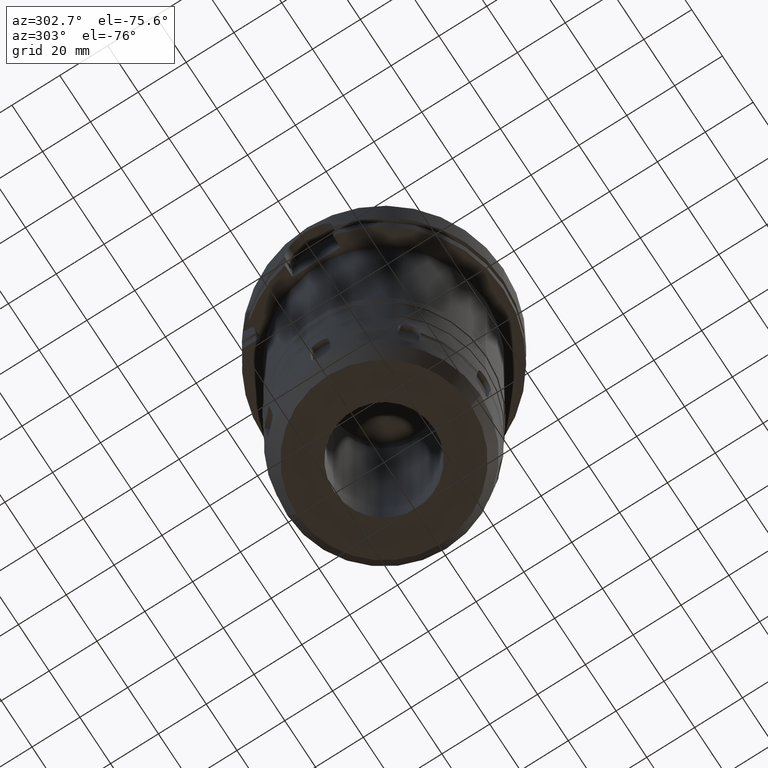
[diagram: clean part render]
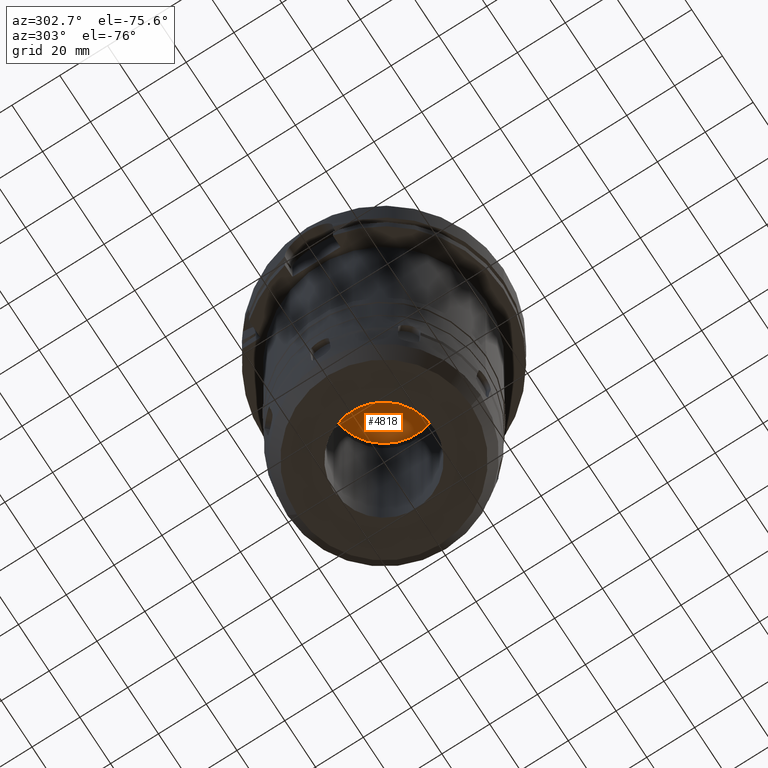
[diagram: same view with one face highlighted and labeled with its STEP entity id]
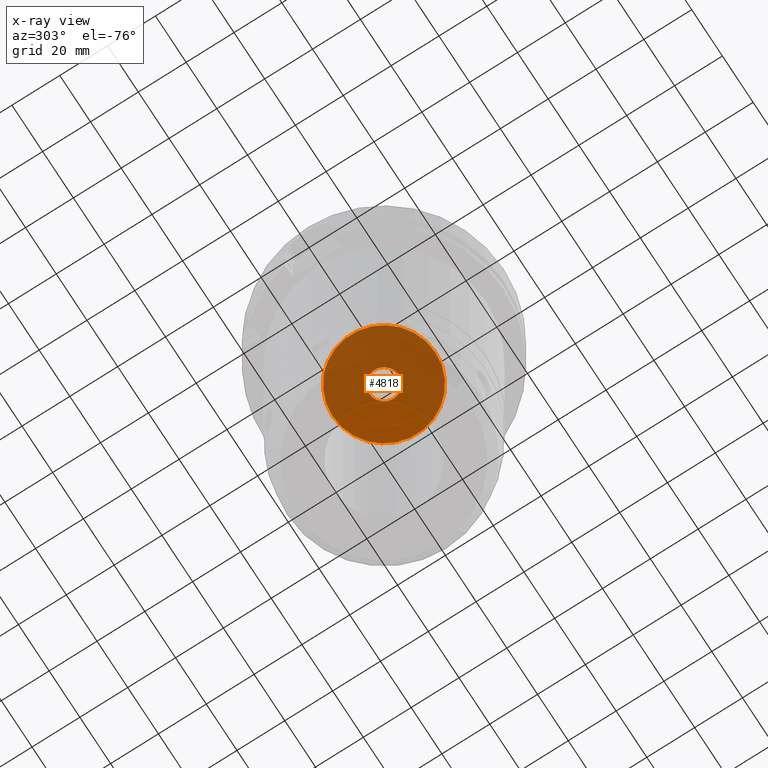
[diagram: x-ray of the same camera — body ghosted, the highlighted face saturated]
A machine part, auxiliary view. The second image highlights one B-rep face of the part: STEP entity #4818.
The next image is the same camera in x-ray: the body ghosted, the highlighted face saturated — about 75% of this face is hidden behind the body in this view.
In plain terms, the highlighted planar face has unit normal (0, 0, 1).
Its self-contained STEP definition (entity closure, byte-faithful):
#901=CARTESIAN_POINT('',(0.E0,0.E0,-5.8E1));
#902=DIRECTION('',(0.E0,0.E0,1.E0));
#903=DIRECTION('',(0.E0,-1.E0,0.E0));
#904=AXIS2_PLACEMENT_3D('',#901,#902,#903);
#909=CARTESIAN_POINT('',(0.E0,0.E0,-5.8E1));
#910=DIRECTION('',(0.E0,0.E0,1.E0));
#911=DIRECTION('',(0.E0,1.E0,0.E0));
#912=AXIS2_PLACEMENT_3D('',#909,#910,#911);
#917=CARTESIAN_POINT('',(0.E0,0.E0,-5.8E1));
#918=DIRECTION('',(0.E0,0.E0,-1.E0));
#919=DIRECTION('',(0.E0,-1.E0,0.E0));
#920=AXIS2_PLACEMENT_3D('',#917,#918,#919);
#925=CARTESIAN_POINT('',(0.E0,0.E0,-5.8E1));
#926=DIRECTION('',(0.E0,0.E0,-1.E0));
#927=DIRECTION('',(0.E0,1.E0,0.E0));
#928=AXIS2_PLACEMENT_3D('',#925,#926,#927);
#3792=CARTESIAN_POINT('',(0.E0,6.2E0,-5.8E1));
#3793=VERTEX_POINT('',#3792);
#3794=CARTESIAN_POINT('',(0.E0,-6.2E0,-5.8E1));
#3795=VERTEX_POINT('',#3794);
#3796=CARTESIAN_POINT('',(0.E0,-2.15E1,-5.8E1));
#3797=CARTESIAN_POINT('',(0.E0,2.15E1,-5.8E1));
#3798=VERTEX_POINT('',#3796);
#3799=VERTEX_POINT('',#3797);
#4803=CARTESIAN_POINT('',(0.E0,0.E0,-5.8E1));
#4804=DIRECTION('',(0.E0,0.E0,1.E0));
#4805=DIRECTION('',(0.E0,1.E0,0.E0));
#4806=AXIS2_PLACEMENT_3D('',#4803,#4804,#4805);
#4807=PLANE('',#4806);
#4809=ORIENTED_EDGE('',*,*,#4808,.T.);
#4811=ORIENTED_EDGE('',*,*,#4810,.T.);
#4812=EDGE_LOOP('',(#4809,#4811));
#4813=FACE_OUTER_BOUND('',#4812,.F.);
#4814=ORIENTED_EDGE('',*,*,#4796,.T.);
#4815=ORIENTED_EDGE('',*,*,#4785,.T.);
#4816=EDGE_LOOP('',(#4814,#4815));
#4817=FACE_BOUND('',#4816,.F.);
#905=CIRCLE('',#904,2.15E1);
#913=CIRCLE('',#912,2.15E1);
#921=CIRCLE('',#920,6.2E0);
#929=CIRCLE('',#928,6.2E0);
#4785=EDGE_CURVE('',#3793,#3795,#929,.T.);
#4796=EDGE_CURVE('',#3795,#3793,#921,.T.);
#4808=EDGE_CURVE('',#3798,#3799,#905,.T.);
#4810=EDGE_CURVE('',#3799,#3798,#913,.T.);
#4818=ADVANCED_FACE('',(#4813,#4817),#4807,.F.);